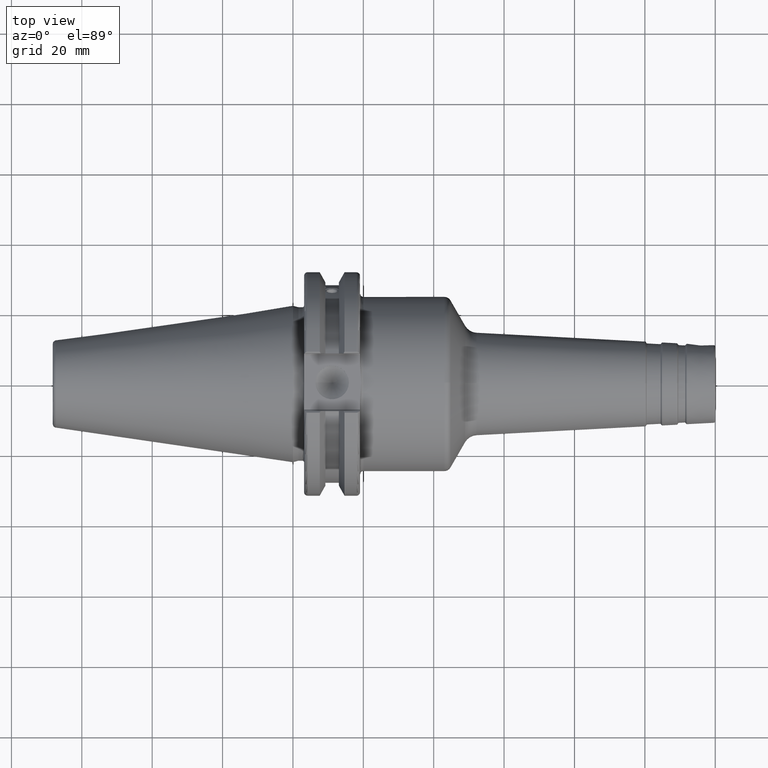
[diagram: clean part render]
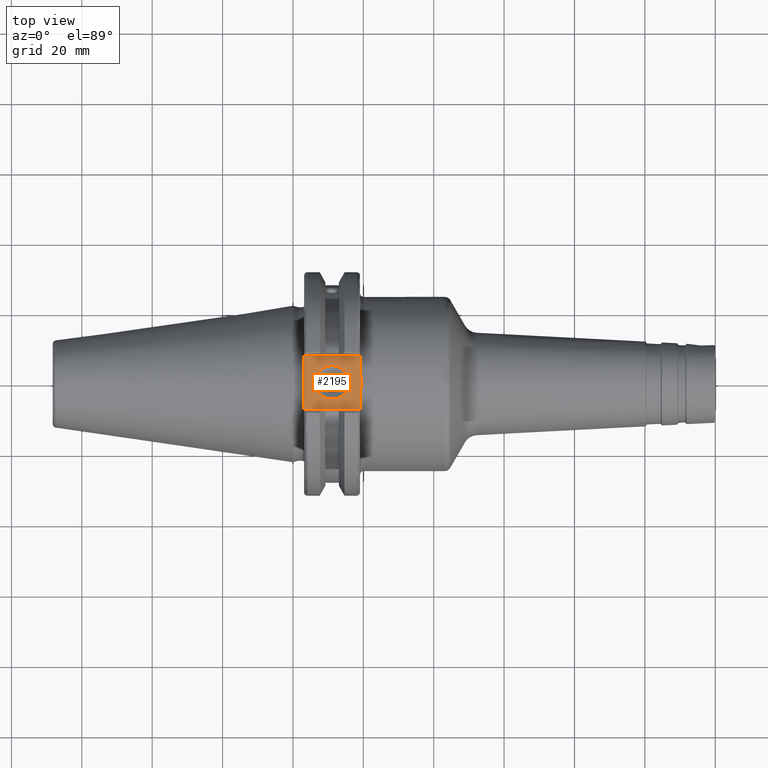
[diagram: same view with one face highlighted and labeled with its STEP entity id]
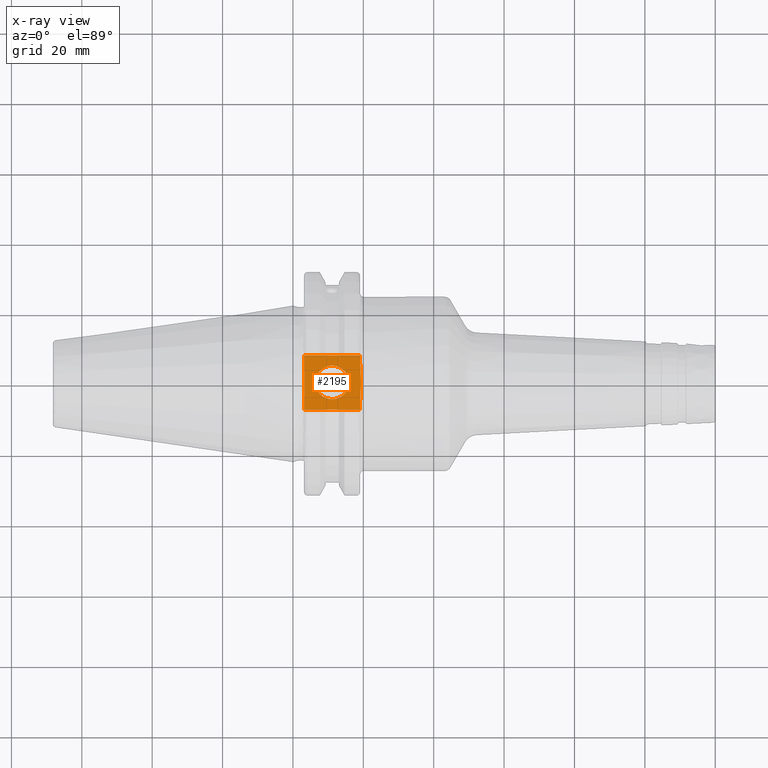
[diagram: x-ray of the same camera — body ghosted, the highlighted face saturated]
A machine part, top view. The second image highlights one B-rep face of the part: STEP entity #2195.
The next image is the same camera in x-ray: the body ghosted, the highlighted face saturated — about 0% of this face is hidden behind the body in this view.
In plain terms, the highlighted planar face has unit normal (0, 0, 1).
Its self-contained STEP definition (entity closure, byte-faithful):
#82=PLANE('',#2512);
#116=FACE_BOUND('',#406,.T.);
#123=B_SPLINE_CURVE_WITH_KNOTS('',3,(#3549,#3550,#3551,#3552,#3553,#3554,
#3555,#3556,#3557,#3558),.UNSPECIFIED.,.F.,.F.,(4,2,2,2,4),(1.28229186042809,
1.47392183654147,1.862003561099,2.25008528565653,2.44171526176991),
 .UNSPECIFIED.);
#284=FACE_OUTER_BOUND('',#405,.T.);
#405=EDGE_LOOP('',(#2030,#2031,#2032,#2033,#2034,#2035));
#406=EDGE_LOOP('',(#2036,#2037));
#432=LINE('',#3585,#533);
#439=LINE('',#3602,#540);
#475=LINE('',#3972,#576);
#498=LINE('',#4201,#599);
#500=LINE('',#4204,#601);
#533=VECTOR('',#2792,10.);
#540=VECTOR('',#2805,10.);
#576=VECTOR('',#3041,10.);
#599=VECTOR('',#3136,10.);
#601=VECTOR('',#3140,10.);
#780=CIRCLE('',#2499,4.7625);
#781=CIRCLE('',#2500,4.7625);
#878=VERTEX_POINT('',#3547);
#879=VERTEX_POINT('',#3548);
#882=VERTEX_POINT('',#3584);
#889=VERTEX_POINT('',#3600);
#980=VERTEX_POINT('',#3969);
#981=VERTEX_POINT('',#3971);
#1030=VERTEX_POINT('',#4242);
#1031=VERTEX_POINT('',#4243);
#1150=EDGE_CURVE('',#878,#879,#123,.F.);
#1155=EDGE_CURVE('',#878,#882,#432,.T.);
#1164=EDGE_CURVE('',#889,#879,#439,.T.);
#1284=EDGE_CURVE('',#980,#981,#475,.T.);
#1347=EDGE_CURVE('',#882,#980,#498,.T.);
#1349=EDGE_CURVE('',#981,#889,#500,.T.);
#1365=EDGE_CURVE('',#1030,#1031,#780,.T.);
#1366=EDGE_CURVE('',#1031,#1030,#781,.T.);
#2030=ORIENTED_EDGE('',*,*,#1347,.F.);
#2031=ORIENTED_EDGE('',*,*,#1155,.F.);
#2032=ORIENTED_EDGE('',*,*,#1150,.T.);
#2033=ORIENTED_EDGE('',*,*,#1164,.F.);
#2034=ORIENTED_EDGE('',*,*,#1349,.F.);
#2035=ORIENTED_EDGE('',*,*,#1284,.F.);
#2036=ORIENTED_EDGE('',*,*,#1365,.T.);
#2037=ORIENTED_EDGE('',*,*,#1366,.T.);
#2195=ADVANCED_FACE('',(#284,#116),#82,.T.);
#2499=AXIS2_PLACEMENT_3D('',#4244,#3177,#3178);
#2500=AXIS2_PLACEMENT_3D('',#4245,#3179,#3180);
#2512=AXIS2_PLACEMENT_3D('',#4258,#3204,#3205);
#2792=DIRECTION('',(0.,-1.,0.));
#2805=DIRECTION('',(0.,-1.,0.));
#3041=DIRECTION('',(0.,1.,0.));
#3136=DIRECTION('',(-1.,1.31581988103722E-16,0.));
#3140=DIRECTION('',(1.,0.,0.));
#3177=DIRECTION('center_axis',(0.,0.,-1.));
#3178=DIRECTION('ref_axis',(1.,0.,0.));
#3179=DIRECTION('center_axis',(0.,0.,-1.));
#3180=DIRECTION('ref_axis',(1.,0.,0.));
#3204=DIRECTION('center_axis',(0.,0.,1.));
#3205=DIRECTION('ref_axis',(1.,0.,0.));
#3547=CARTESIAN_POINT('',(19.05,-6.16948133962654,25.));
#3548=CARTESIAN_POINT('',(19.05,6.16948133962654,25.));
#3549=CARTESIAN_POINT('Ctrl Pts',(19.05,6.16948133962654,25.));
#3550=CARTESIAN_POINT('Ctrl Pts',(19.05,5.53071475258195,25.));
#3551=CARTESIAN_POINT('Ctrl Pts',(19.0917093675371,4.76533047486056,25.));
#3552=CARTESIAN_POINT('Ctrl Pts',(19.2334466867335,2.83816328553263,25.));
#3553=CARTESIAN_POINT('Ctrl Pts',(19.3885621722339,1.29360574852511,25.));
#3554=CARTESIAN_POINT('Ctrl Pts',(19.3885621722339,-1.29360574852511,25.));
#3555=CARTESIAN_POINT('Ctrl Pts',(19.2334466867335,-2.83816328553263,25.));
#3556=CARTESIAN_POINT('Ctrl Pts',(19.0917093675371,-4.76533047486056,25.));
#3557=CARTESIAN_POINT('Ctrl Pts',(19.05,-5.53071475258195,25.));
#3558=CARTESIAN_POINT('Ctrl Pts',(19.05,-6.16948133962654,25.));
#3584=CARTESIAN_POINT('',(19.05,-7.69,25.));
#3585=CARTESIAN_POINT('',(19.05,0.,25.));
#3600=CARTESIAN_POINT('',(19.05,7.69,25.));
#3602=CARTESIAN_POINT('',(19.05,0.,25.));
#3969=CARTESIAN_POINT('',(3.175,-7.68999999999999,25.));
#3971=CARTESIAN_POINT('',(3.175,7.69,25.));
#3972=CARTESIAN_POINT('',(3.175,15.875,25.));
#4201=CARTESIAN_POINT('',(9.44125,-7.69,25.));
#4204=CARTESIAN_POINT('',(17.87875,7.69,25.));
#4242=CARTESIAN_POINT('',(15.8966,0.,25.));
#4243=CARTESIAN_POINT('',(6.3716,-5.83238038093927E-16,25.));
#4244=CARTESIAN_POINT('Origin',(11.1341,0.,25.));
#4245=CARTESIAN_POINT('Origin',(11.1341,0.,25.));
#4258=CARTESIAN_POINT('Origin',(15.7075,0.,25.));